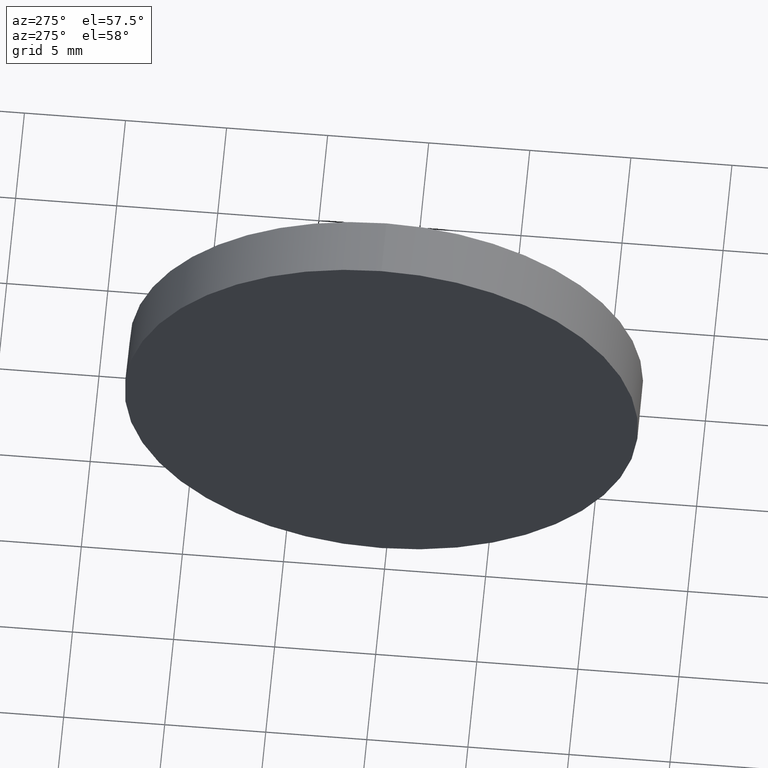
[diagram: clean part render]
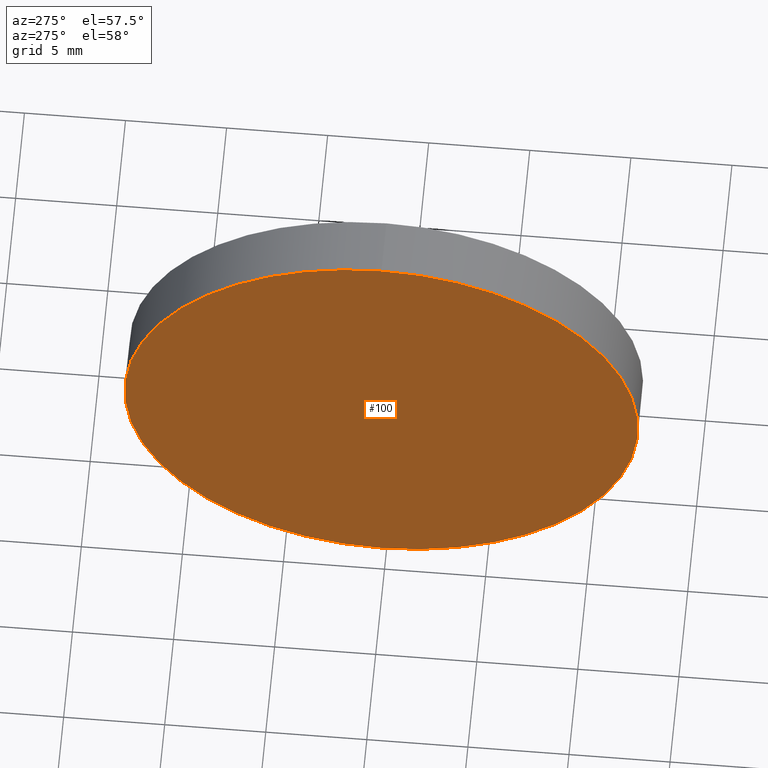
[diagram: same view with one face highlighted and labeled with its STEP entity id]
A machine part, auxiliary view. The second image highlights one B-rep face of the part: STEP entity #100.
In plain terms, the highlighted planar face has unit normal (1, 0, 0).
Its self-contained STEP definition (entity closure, byte-faithful):
#6 = CARTESIAN_POINT ( 'NONE',  ( 115.8700467759432500, 65.23355492641219700, 0.0000000000000000000 ) ) ;
#7 = ORIENTED_EDGE ( 'NONE', *, *, #167, .T. ) ;
#12 = CIRCLE ( 'NONE', #127, 12.70000000000000300 ) ;
#32 = DIRECTION ( 'NONE',  ( 0.0000000000000000000, 0.0000000000000000000, 1.000000000000000000 ) ) ;
#42 = CARTESIAN_POINT ( 'NONE',  ( 115.8700467759432500, 65.23355492641219700, 12.70000000000000300 ) ) ;
#57 = PLANE ( 'NONE',  #77 ) ;
#59 = CARTESIAN_POINT ( 'NONE',  ( 115.8700467759432500, 65.23355492641219700, -12.70000000000000300 ) ) ;
#71 = EDGE_LOOP ( 'NONE', ( #7, #176 ) ) ;
#76 = DIRECTION ( 'NONE',  ( -1.000000000000000000, -0.0000000000000000000, -0.0000000000000000000 ) ) ;
#77 = AXIS2_PLACEMENT_3D ( 'NONE', #163, #108, #156 ) ;
#87 = AXIS2_PLACEMENT_3D ( 'NONE', #166, #76, #32 ) ;
#100 = ADVANCED_FACE ( 'NONE', ( #101 ), #57, .F. ) ;
#101 = FACE_OUTER_BOUND ( 'NONE', #71, .T. ) ;
#105 = DIRECTION ( 'NONE',  ( -1.000000000000000000, -0.0000000000000000000, -0.0000000000000000000 ) ) ;
#106 = VERTEX_POINT ( 'NONE', #42 ) ;
#108 = DIRECTION ( 'NONE',  ( 1.000000000000000000, 0.0000000000000000000, 0.0000000000000000000 ) ) ;
#127 = AXIS2_PLACEMENT_3D ( 'NONE', #6, #105, #151 ) ;
#129 = EDGE_CURVE ( 'NONE', #155, #106, #12, .T. ) ;
#141 = CIRCLE ( 'NONE', #87, 12.70000000000000300 ) ;
#151 = DIRECTION ( 'NONE',  ( 0.0000000000000000000, 0.0000000000000000000, 1.000000000000000000 ) ) ;
#155 = VERTEX_POINT ( 'NONE', #59 ) ;
#156 = DIRECTION ( 'NONE',  ( 0.0000000000000000000, 0.0000000000000000000, -1.000000000000000000 ) ) ;
#163 = CARTESIAN_POINT ( 'NONE',  ( 115.8700467759432500, 65.23355492641219700, 0.0000000000000000000 ) ) ;
#166 = CARTESIAN_POINT ( 'NONE',  ( 115.8700467759432500, 65.23355492641219700, 0.0000000000000000000 ) ) ;
#167 = EDGE_CURVE ( 'NONE', #106, #155, #141, .T. ) ;
#176 = ORIENTED_EDGE ( 'NONE', *, *, #129, .T. ) ;